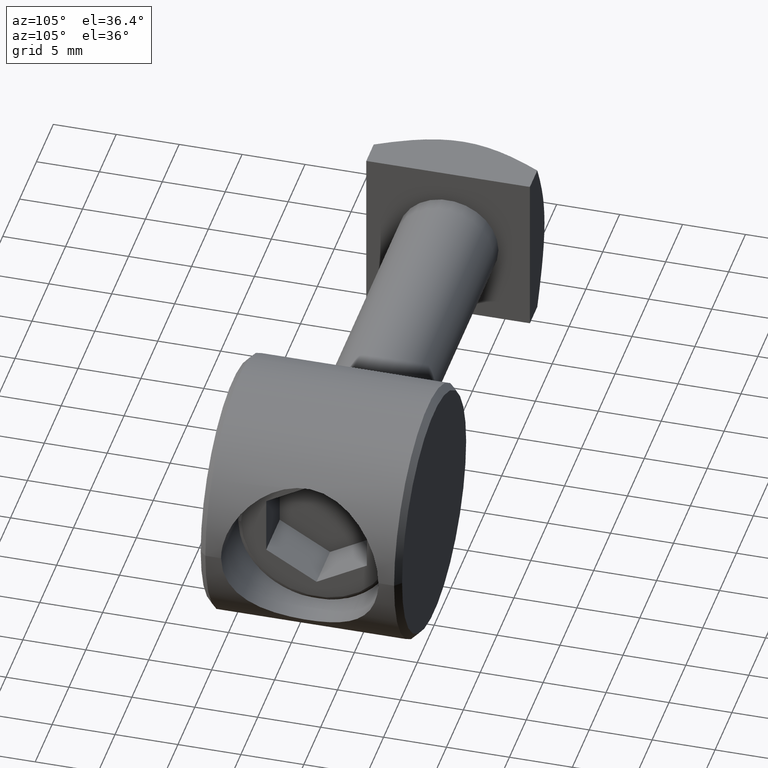
[diagram: clean part render]
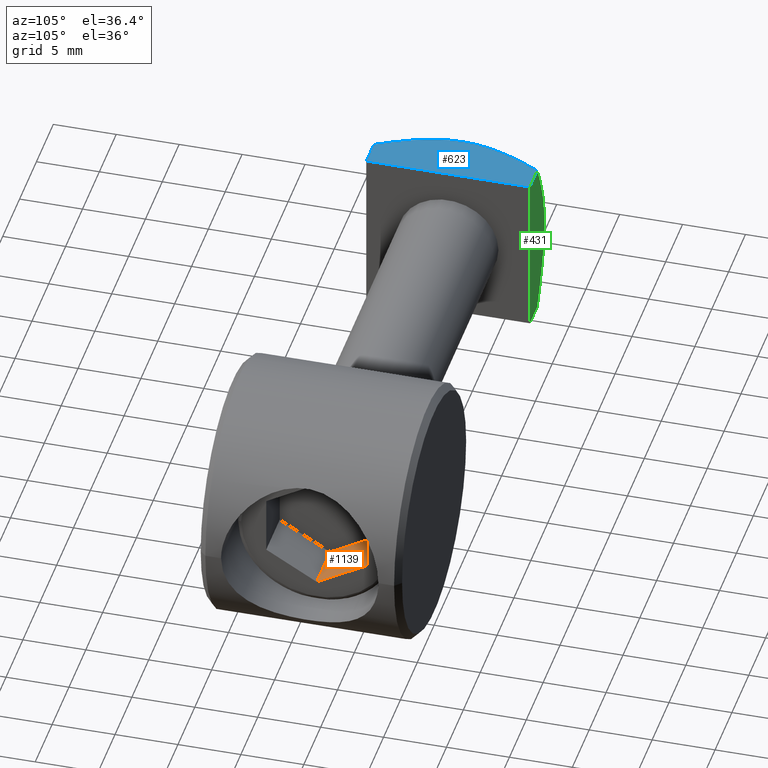
[diagram: same view with three faces highlighted in distinct colors, each labeled with its STEP entity id]
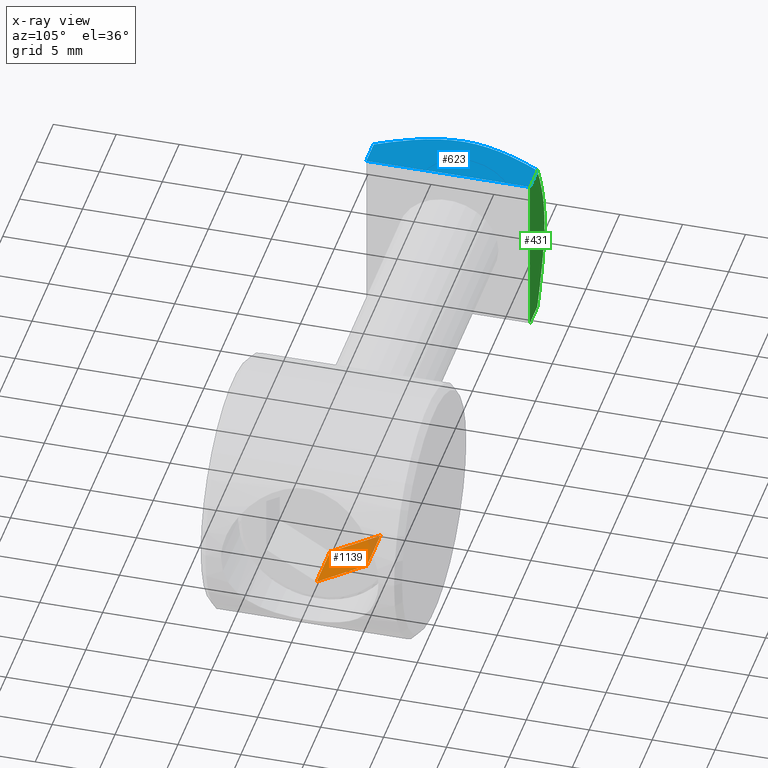
[diagram: x-ray of the same camera — body ghosted, the three highlighted faces saturated]
A machine part, auxiliary view with three faces highlighted in distinct colors.
The next image is the same camera in x-ray (body ghosted, the three faces saturated) — at least one of them is partly hidden behind the body in this view.
Their STEP definitions:

[orange] entity #1139 — the highlighted planar face has unit normal (0, -0.5, 0.866).
#879=CARTESIAN_POINT('',(4.999999999979536,-3.999999999968168,-2.309401076758503));
#880=VERTEX_POINT('',#879);
#889=CARTESIAN_POINT('',(4.999999999979536,-7.999999999968168,-4.618802153517006));
#890=VERTEX_POINT('',#889);
#891=CARTESIAN_POINT('',(4.999999999979536,-7.999999999968168,-4.618802153517006));
#892=DIRECTION('',(0.0,0.866025403784439,0.500000000000000));
#893=VECTOR('',#892,4.618802153517007);
#894=LINE('',#891,#893);
#895=EDGE_CURVE('',#890,#880,#894,.T.);
#1001=CARTESIAN_POINT('',(0.999999999979536,-3.999999999968168,-2.309401076758503));
#1002=VERTEX_POINT('',#1001);
#1003=CARTESIAN_POINT('',(4.999999999979536,-3.999999999968168,-2.309401076758503));
#1004=DIRECTION('',(-1.0,0.0,0.0));
#1005=VECTOR('',#1004,4.0);
#1006=LINE('',#1003,#1005);
#1007=EDGE_CURVE('',#880,#1002,#1006,.T.);
#1106=CARTESIAN_POINT('',(0.999999999979536,-7.999999999968168,-4.618802153517006));
#1107=VERTEX_POINT('',#1106);
#1108=CARTESIAN_POINT('',(4.999999999979536,-7.999999999968168,-4.618802153517006));
#1109=DIRECTION('',(-1.0,0.0,0.0));
#1110=VECTOR('',#1109,4.0);
#1111=LINE('',#1108,#1110);
#1112=EDGE_CURVE('',#890,#1107,#1111,.T.);
#1123=CARTESIAN_POINT('',(4.999999999979536,-7.999999999968168,-4.618802153517006));
#1124=DIRECTION('',(0.0,-0.500000000000000,0.866025403784439));
#1125=DIRECTION('',(0.0,0.866025403784439,0.500000000000000));
#1126=AXIS2_PLACEMENT_3D('',#1123,#1124,#1125);
#1127=PLANE('',#1126);
#1128=CARTESIAN_POINT('',(0.999999999979536,-7.999999999968168,-4.618802153517006));
#1129=DIRECTION('',(0.0,0.866025403784439,0.500000000000000));
#1130=VECTOR('',#1129,4.618802153517007);
#1131=LINE('',#1128,#1130);
#1132=EDGE_CURVE('',#1107,#1002,#1131,.T.);
#1133=ORIENTED_EDGE('',*,*,#1132,.F.);
#1134=ORIENTED_EDGE('',*,*,#1112,.F.);
#1135=ORIENTED_EDGE('',*,*,#895,.T.);
#1136=ORIENTED_EDGE('',*,*,#1007,.T.);
#1137=EDGE_LOOP('',(#1133,#1134,#1135,#1136));
#1138=FACE_OUTER_BOUND('',#1137,.T.);
#1139=ADVANCED_FACE('',(#1138),#1127,.T.);

[blue] entity #623 — the highlighted planar face has unit normal (0, 0, 1).
#402=CARTESIAN_POINT('',(-36.201733334651635,-1.499999999994088,6.500000000000001));
#403=VERTEX_POINT('',#402);
#415=CARTESIAN_POINT('',(-33.999999999840384,-1.499999999994088,6.500000000000001));
#416=VERTEX_POINT('',#415);
#417=CARTESIAN_POINT('',(-33.999999999840384,-1.499999999994088,6.500000000000001));
#418=DIRECTION('',(-1.0,0.0,0.0));
#419=VECTOR('',#418,2.201733334811109);
#420=LINE('',#417,#419);
#421=EDGE_CURVE('',#416,#403,#420,.T.);
#485=CARTESIAN_POINT('',(-33.999999999840384,-14.499999999994088,6.500000000000000));
#486=VERTEX_POINT('',#485);
#493=CARTESIAN_POINT('',(-36.201733334621622,-14.499999999994088,6.500000000000000));
#494=VERTEX_POINT('',#493);
#495=CARTESIAN_POINT('',(-36.201733334621686,-14.499999999994088,6.500000000000000));
#496=DIRECTION('',(1.0,0.0,0.0));
#497=VECTOR('',#496,2.201733334781302);
#498=LINE('',#495,#497);
#499=EDGE_CURVE('',#494,#486,#498,.T.);
#534=CARTESIAN_POINT('',(-33.999999999840384,-14.499999999994088,6.500000000000000));
#535=DIRECTION('',(0.0,1.0,0.0));
#536=VECTOR('',#535,13.0);
#537=LINE('',#534,#536);
#538=EDGE_CURVE('',#486,#416,#537,.T.);
#597=CARTESIAN_POINT('',(-40.600042749516888,-15.800042749639488,6.500000000000000));
#598=DIRECTION('',(0.0,0.0,1.0));
#599=DIRECTION('',(1.0,0.0,0.0));
#600=AXIS2_PLACEMENT_3D('',#597,#598,#599);
#601=PLANE('',#600);
#602=ORIENTED_EDGE('',*,*,#421,.T.);
#603=CARTESIAN_POINT('',(-36.201733334651635,-1.499999999994088,6.499999999999795));
#604=CARTESIAN_POINT('',(-36.489893601473796,-2.016112046261696,6.499999999999795));
#605=CARTESIAN_POINT('',(-37.009115731002112,-3.002687391246127,6.500000000000115));
#606=CARTESIAN_POINT('',(-37.635598378389659,-4.443208278407838,6.499999999999895));
#607=CARTESIAN_POINT('',(-38.029780495605337,-5.670961655258452,6.500000000000885));
#608=CARTESIAN_POINT('',(-38.264522151448091,-6.814597398696606,6.499999999998211));
#609=CARTESIAN_POINT('',(-38.358579616950465,-7.942887731217070,6.500000000000791));
#610=CARTESIAN_POINT('',(-38.273069701404893,-9.190290514422031,6.499999999999497));
#611=CARTESIAN_POINT('',(-37.993962222569280,-10.484271825341239,6.499999999999601));
#612=CARTESIAN_POINT('',(-37.544377856462688,-11.782552270516589,6.500000000000128));
#613=CARTESIAN_POINT('',(-36.936242893588314,-13.137565160850954,6.499999999999893));
#614=CARTESIAN_POINT('',(-36.464439941395085,-14.029476961254204,6.500000000000179));
#615=CARTESIAN_POINT('',(-36.201733334621622,-14.499999999994088,6.500000000000179));
#616=B_SPLINE_CURVE_WITH_KNOTS('',3,(#603,#604,#605,#606,#607,#608,#609,#610,#611,#612,#613,#614,#615),.UNSPECIFIED.,.F.,.U.,(4,1,1,1,1,1,1,1,1,1,4),(0.0,1.773622073414402,3.342496642905065,4.708358363837534,5.635901581797992,6.840799363729969,8.096201392120099,9.375944470746504,10.803410572822845,12.211987669687661,13.828887645259680),.UNSPECIFIED.);
#617=EDGE_CURVE('',#403,#494,#616,.T.);
#618=ORIENTED_EDGE('',*,*,#617,.T.);
#619=ORIENTED_EDGE('',*,*,#499,.T.);
#620=ORIENTED_EDGE('',*,*,#538,.T.);
#621=EDGE_LOOP('',(#602,#618,#619,#620));
#622=FACE_OUTER_BOUND('',#621,.T.);
#623=ADVANCED_FACE('',(#622),#601,.T.);

[green] entity #431 — the highlighted planar face has unit normal (0, 1, 0).
#374=CARTESIAN_POINT('',(-33.999999999840384,-1.499999999994088,-6.499999999999998));
#375=DIRECTION('',(0.0,1.0,0.0));
#376=DIRECTION('',(-1.0,0.0,0.0));
#377=AXIS2_PLACEMENT_3D('',#374,#375,#376);
#378=PLANE('',#377);
#379=CARTESIAN_POINT('',(-33.999999999840384,-1.499999999994088,-6.499999999999998));
#380=VERTEX_POINT('',#379);
#381=CARTESIAN_POINT('',(-36.201733334651635,-1.499999999994088,-6.499999999999998));
#382=VERTEX_POINT('',#381);
#383=CARTESIAN_POINT('',(-33.999999999840384,-1.499999999994088,-6.499999999999998));
#384=DIRECTION('',(-1.0,0.0,0.0));
#385=VECTOR('',#384,2.201733334811109);
#386=LINE('',#383,#385);
#387=EDGE_CURVE('',#380,#382,#386,.T.);
#388=ORIENTED_EDGE('',*,*,#387,.T.);
#389=CARTESIAN_POINT('',(-38.327633036136831,-1.499999999994088,0.0));
#390=VERTEX_POINT('',#389);
#391=CARTESIAN_POINT('',(-36.201733334651635,-1.499999999994088,-6.499999999999794));
#392=CARTESIAN_POINT('',(-36.529557071315139,-1.499999999994088,-5.912848338149615));
#393=CARTESIAN_POINT('',(-37.039856128614701,-1.499999999982265,-4.935940255374428));
#394=CARTESIAN_POINT('',(-37.709078106545803,-1.500000000022737,-3.366536166990874));
#395=CARTESIAN_POINT('',(-38.107651113880365,-1.499999999867669,-2.072374110626530));
#396=CARTESIAN_POINT('',(-38.296588462757882,-1.500000000217824,-0.881700095806656));
#397=CARTESIAN_POINT('',(-38.327633036136831,-1.499999999994088,-0.282034297807596));
#398=CARTESIAN_POINT('',(-38.327633036136831,-1.499999999994088,-8.881784E-016));
#399=B_SPLINE_CURVE_WITH_KNOTS('',3,(#391,#392,#393,#394,#395,#396,#397,#398),.UNSPECIFIED.,.F.,.U.,(4,1,1,1,1,4),(0.0,2.017883608308912,3.303099161466276,5.115860811620169,6.067965354631358,6.914426426632446),.UNSPECIFIED.);
#400=EDGE_CURVE('',#382,#390,#399,.T.);
#401=ORIENTED_EDGE('',*,*,#400,.T.);
#402=CARTESIAN_POINT('',(-36.201733334651635,-1.499999999994088,6.500000000000001));
#403=VERTEX_POINT('',#402);
#404=CARTESIAN_POINT('',(-38.327633036136831,-1.499999999994088,0.0));
#405=CARTESIAN_POINT('',(-38.327633036136831,-1.499999999994088,0.282034297807597));
#406=CARTESIAN_POINT('',(-38.296588462757427,-1.500000000216915,0.881700095806656));
#407=CARTESIAN_POINT('',(-38.107651113880365,-1.499999999866304,2.072374110626529));
#408=CARTESIAN_POINT('',(-37.709078106546713,-1.500000000023192,3.366536166990874));
#409=CARTESIAN_POINT('',(-37.039856128614247,-1.499999999982265,4.935940255374426));
#410=CARTESIAN_POINT('',(-36.529557071315139,-1.499999999994088,5.912848338149615));
#411=CARTESIAN_POINT('',(-36.201733334651635,-1.499999999994088,6.499999999999795));
#412=B_SPLINE_CURVE_WITH_KNOTS('',3,(#404,#405,#406,#407,#408,#409,#410,#411),.UNSPECIFIED.,.F.,.U.,(4,1,1,1,1,4),(0.0,0.846461072001089,1.798565615012273,3.611327265166168,4.896542818323531,6.914426426632445),.UNSPECIFIED.);
#413=EDGE_CURVE('',#390,#403,#412,.T.);
#414=ORIENTED_EDGE('',*,*,#413,.T.);
#415=CARTESIAN_POINT('',(-33.999999999840384,-1.499999999994088,6.500000000000001));
#416=VERTEX_POINT('',#415);
#417=CARTESIAN_POINT('',(-33.999999999840384,-1.499999999994088,6.500000000000001));
#418=DIRECTION('',(-1.0,0.0,0.0));
#419=VECTOR('',#418,2.201733334811109);
#420=LINE('',#417,#419);
#421=EDGE_CURVE('',#416,#403,#420,.T.);
#422=ORIENTED_EDGE('',*,*,#421,.F.);
#423=CARTESIAN_POINT('',(-33.999999999840384,-1.499999999994088,-6.499999999999998));
#424=DIRECTION('',(0.0,0.0,1.0));
#425=VECTOR('',#424,13.0);
#426=LINE('',#423,#425);
#427=EDGE_CURVE('',#380,#416,#426,.T.);
#428=ORIENTED_EDGE('',*,*,#427,.F.);
#429=EDGE_LOOP('',(#388,#401,#414,#422,#428));
#430=FACE_OUTER_BOUND('',#429,.T.);
#431=ADVANCED_FACE('',(#430),#378,.T.);